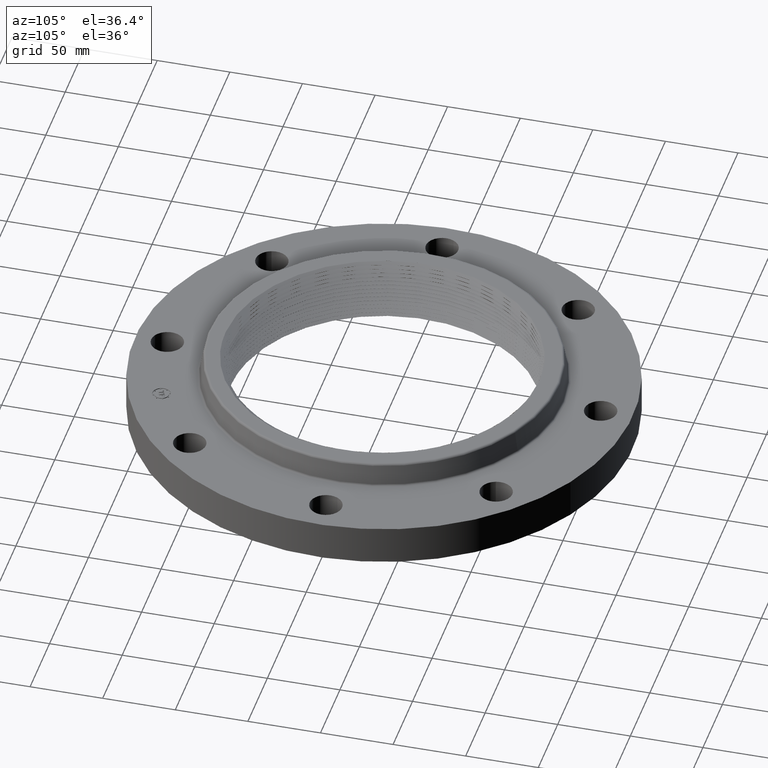
[diagram: clean part render]
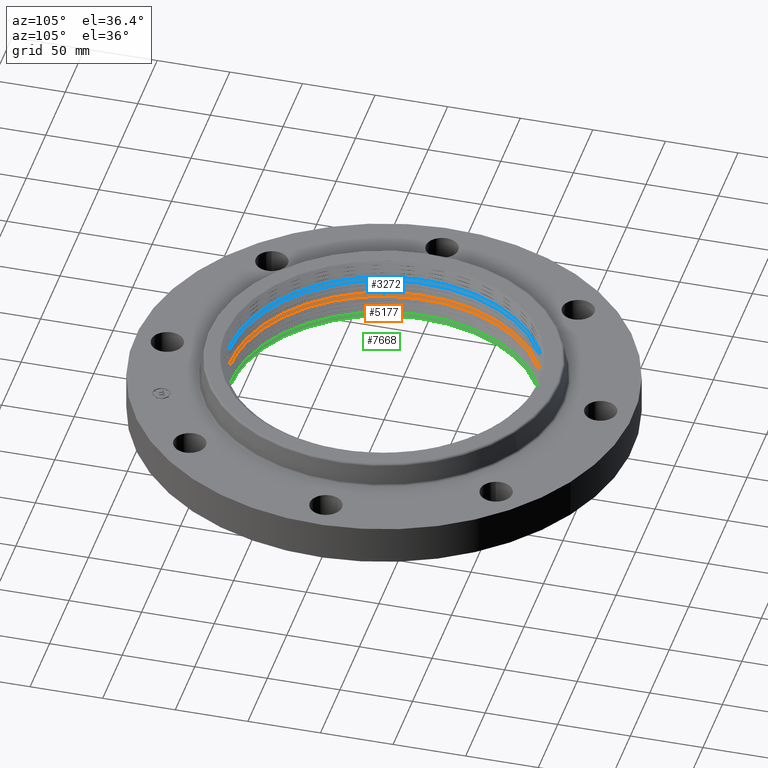
[diagram: same view with three faces highlighted in distinct colors, each labeled with its STEP entity id]
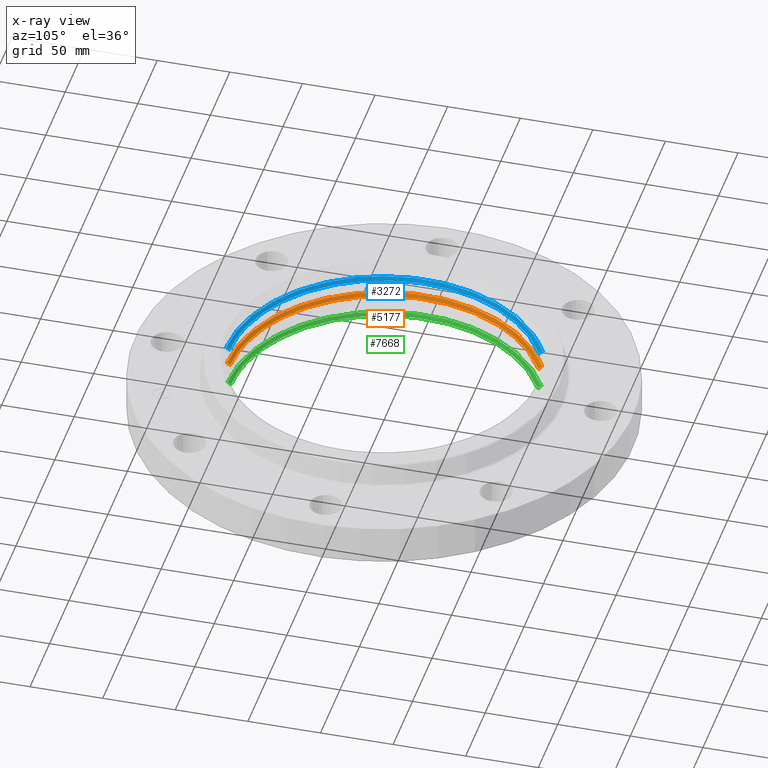
[diagram: x-ray of the same camera — body ghosted, the three highlighted faces saturated]
A machine part, auxiliary view with three faces highlighted in distinct colors.
The next image is the same camera in x-ray (body ghosted, the three faces saturated) — at least one of them is partly hidden behind the body in this view.
Their STEP definitions:

[orange] entity #5177 — the highlighted face is a freeform B-spline surface patch.
#4962=CARTESIAN_POINT('Vertex',(-2.25011470523E-009,-4.26677267602,0.685938271637)) ;
#4996=CARTESIAN_POINT('Control Point',(-2.25011953494E-009,-4.26677267602,0.685938271637)) ;
#4997=CARTESIAN_POINT('Control Point',(-1.31632005474,-4.26658087935,0.679800762728)) ;
#4998=CARTESIAN_POINT('Control Point',(-2.63256416019,-3.75877503089,0.673662916018)) ;
#4999=CARTESIAN_POINT('Control Point',(-3.67782798046,-2.74424453421,0.667562405577)) ;
#5000=CARTESIAN_POINT('Control Point',(-4.61482580087,-0.51550374432,0.657043105068)) ;
#5001=CARTESIAN_POINT('Control Point',(-4.06149634213,1.75773367391,0.646522773348)) ;
#5002=CARTESIAN_POINT('Control Point',(-3.56977022925,2.61552699081,0.64214869391)) ;
#5003=CARTESIAN_POINT('Control Point',(-2.86927013466,3.29275681196,0.637767165624)) ;
#5004=CARTESIAN_POINT('Control Point',(-2.04481244208,3.74300407337,0.63338545558)) ;
#5005=CARTESIAN_POINT('Vertex',(-2.04481244208,3.74300407337,0.63338545558)) ;
#5094=CARTESIAN_POINT('Control Point',(2.27250583202E-006,-4.16619405117,0.627363721922)) ;
#5095=CARTESIAN_POINT('Control Point',(-2.25011467741E-009,-4.26677267602,0.685938271637)) ;
#5096=CARTESIAN_POINT('Vertex',(2.27250583188E-006,-4.16619405117,0.627363721922)) ;
#5115=CARTESIAN_POINT('Control Point',(2.3024671564E-006,-4.16486930738,0.626592223294)) ;
#5116=CARTESIAN_POINT('Control Point',(-2.25011953494E-009,-4.26677267602,0.685938271637)) ;
#5117=CARTESIAN_POINT('Control Point',(-1.28488005343,-4.16467822168,0.620454714385)) ;
#5118=CARTESIAN_POINT('Control Point',(-1.31632005474,-4.26658087935,0.679800762728)) ;
#5119=CARTESIAN_POINT('Control Point',(-2.56968501748,-3.6689964374,0.614316882943)) ;
#5120=CARTESIAN_POINT('Control Point',(-2.63256416019,-3.75877503089,0.673662916018)) ;
#5121=CARTESIAN_POINT('Control Point',(-3.58997819674,-2.67869482752,0.608216358189)) ;
#5122=CARTESIAN_POINT('Control Point',(-3.67782798046,-2.74424453421,0.667562405577)) ;
#5123=CARTESIAN_POINT('Control Point',(-4.5045862223,-0.50318927836,0.597697056046)) ;
#5124=CARTESIAN_POINT('Control Point',(-4.61482580087,-0.51550374432,0.657043105068)) ;
#5125=CARTESIAN_POINT('Control Point',(-3.96446819656,1.71574039743,0.587176725494)) ;
#5126=CARTESIAN_POINT('Control Point',(-4.06149634213,1.75773367391,0.646522773348)) ;
#5127=CARTESIAN_POINT('Control Point',(-3.48448676169,2.55303916013,0.58280264946)) ;
#5128=CARTESIAN_POINT('Control Point',(-3.56977022925,2.61552699081,0.64214869391)) ;
#5129=CARTESIAN_POINT('Control Point',(-2.80072037331,3.21408684021,0.578421117286)) ;
#5130=CARTESIAN_POINT('Control Point',(-2.86927013466,3.29275681196,0.637767165624)) ;
#5131=CARTESIAN_POINT('Control Point',(-1.99595948813,3.653574294,0.574039407241)) ;
#5132=CARTESIAN_POINT('Control Point',(-2.04481244208,3.74300407337,0.63338545558)) ;
#5134=CARTESIAN_POINT('Control Point',(-1.99659457653,3.65473688113,0.574810905869)) ;
#5135=CARTESIAN_POINT('Control Point',(-2.04481244208,3.74300407337,0.63338545558)) ;
#5136=CARTESIAN_POINT('Vertex',(-1.99659457653,3.65473688113,0.574810905869)) ;
#5140=CARTESIAN_POINT('Control Point',(-1.99659457653,3.65473688113,0.574810905869)) ;
#5141=CARTESIAN_POINT('Control Point',(-2.18990172796,3.54917002597,0.575863077374)) ;
#5142=CARTESIAN_POINT('Control Point',(-2.37623085672,3.43082311631,0.576915245527)) ;
#5143=CARTESIAN_POINT('Control Point',(-2.55444499751,3.30031690426,0.577966872041)) ;
#5144=CARTESIAN_POINT('Control Point',(-2.89195719602,3.01702961872,0.580066603469)) ;
#5145=CARTESIAN_POINT('Control Point',(-3.18928882783,2.69189026264,0.582166609857)) ;
#5146=CARTESIAN_POINT('Control Point',(-3.32740160691,2.51940480722,0.583219080217)) ;
#5147=CARTESIAN_POINT('Control Point',(-3.58031757679,2.15629662223,0.58532826852)) ;
#5148=CARTESIAN_POINT('Control Point',(-3.78311425595,1.76299356687,0.587437337058)) ;
#5149=CARTESIAN_POINT('Control Point',(-3.8710484498,1.56027750536,0.588489687579)) ;
#5150=CARTESIAN_POINT('Control Point',(-4.09386459329,0.937748457871,0.591640975607)) ;
#5151=CARTESIAN_POINT('Control Point',(-4.19106965198,0.279264494396,0.594793948054)) ;
#5152=CARTESIAN_POINT('Control Point',(-4.197140403,-0.166451691536,0.596902091404)) ;
#5153=CARTESIAN_POINT('Control Point',(-4.11786567765,-0.827225520675,0.600046284481)) ;
#5154=CARTESIAN_POINT('Control Point',(-3.91218135221,-1.45533747733,0.603190628188)) ;
#5155=CARTESIAN_POINT('Control Point',(-3.82987520107,-1.66026190478,0.604241855502)) ;
#5156=CARTESIAN_POINT('Control Point',(-3.63800501961,-2.05877272222,0.606351150427)) ;
#5157=CARTESIAN_POINT('Control Point',(-3.39531972524,-2.42843023814,0.608462454372)) ;
#5158=CARTESIAN_POINT('Control Point',(-3.26213174478,-2.60446365785,0.609515689722)) ;
#5159=CARTESIAN_POINT('Control Point',(-2.97499007616,-2.93642623467,0.611609844602)) ;
#5160=CARTESIAN_POINT('Control Point',(-2.64688159772,-3.2279564431,0.613700048789)) ;
#5161=CARTESIAN_POINT('Control Point',(-2.47271630886,-3.36344583717,0.61474893619)) ;
#5162=CARTESIAN_POINT('Control Point',(-2.1063645862,-3.61103382931,0.616851679062)) ;
#5163=CARTESIAN_POINT('Control Point',(-1.7104927408,-3.80820758062,0.618956351936)) ;
#5164=CARTESIAN_POINT('Control Point',(-1.5067637468,-3.89320801283,0.620007170227)) ;
#5165=CARTESIAN_POINT('Control Point',(-1.09053474753,-4.03574537878,0.622106075902)) ;
#5166=CARTESIAN_POINT('Control Point',(-0.659065182778,-4.12248075935,0.624207966439)) ;
#5167=CARTESIAN_POINT('Control Point',(-0.440249136848,-4.15159012999,0.625261420114)) ;
#5168=CARTESIAN_POINT('Control Point',(-0.220125082398,-4.166161323,0.626312571986)) ;
#5169=CARTESIAN_POINT('Control Point',(2.27250583265E-006,-4.16619405117,0.627363721922)) ;
#5172=ORIENTED_EDGE('',*,*,#5138,.F.) ;
#5173=ORIENTED_EDGE('',*,*,#5007,.F.) ;
#5174=ORIENTED_EDGE('',*,*,#5098,.T.) ;
#5175=ORIENTED_EDGE('',*,*,#5170,.F.) ;
#5177=ADVANCED_FACE('PartBody',(#5176),#5114,.T.) ;
#4995=B_SPLINE_CURVE_WITH_KNOTS('',5,(#4996,#4997,#4998,#4999,#5000,#5001,#5002,#5003,#5004),.UNSPECIFIED.,.F.,.U.,(6,3,6),(0.,165.228048501,283.142254166),.UNSPECIFIED.) ;
#5093=B_SPLINE_CURVE_WITH_KNOTS('',1,(#5094,#5095),.UNSPECIFIED.,.F.,.U.,(2,2),(-1.45870574762,1.49764450472),.UNSPECIFIED.) ;
#5133=B_SPLINE_CURVE_WITH_KNOTS('',1,(#5134,#5135),.UNSPECIFIED.,.F.,.U.,(2,2),(-1.45870574762,1.49764450472),.UNSPECIFIED.) ;
#5139=B_SPLINE_CURVE_WITH_KNOTS('',5,(#5140,#5141,#5142,#5143,#5144,#5145,#5146,#5147,#5148,#5149,#5150,#5151,#5152,#5153,#5154,#5155,#5156,#5157,#5158,#5159,#5160,#5161,#5162,#5163,#5164,#5165,#5166,#5167,#5168,#5169),.UNSPECIFIED.,.F.,.U.,(6,3,3,3,3,3,3,3,3,6),(0.,40.0557228205,79.9692903148,119.882857809,199.980356041,239.862674105,279.744992169,319.589441578,359.433890986,399.458513024),.UNSPECIFIED.) ;
#5114=B_SPLINE_SURFACE_WITH_KNOTS('',5,1,((#5115,#5116),(#5117,#5118),(#5119,#5120),(#5121,#5122),(#5123,#5124),(#5125,#5126),(#5127,#5128),(#5129,#5130),(#5131,#5132)),.UNSPECIFIED.,.F.,.F.,.U.,(6,3,6),(2,2),(0.,165.228048501,283.142254166),(-1.49764450472,1.49764450472),.UNSPECIFIED.) ;
#5007=EDGE_CURVE('',#4963,#5006,#4995,.T.) ;
#5098=EDGE_CURVE('',#4963,#5097,#5093,.F.) ;
#5138=EDGE_CURVE('',#5006,#5137,#5133,.F.) ;
#5170=EDGE_CURVE('',#5137,#5097,#5139,.T.) ;
#5171=EDGE_LOOP('',(#5172,#5173,#5174,#5175)) ;
#5176=FACE_OUTER_BOUND('',#5171,.T.) ;
#4963=VERTEX_POINT('',#4962) ;
#5006=VERTEX_POINT('',#5005) ;
#5097=VERTEX_POINT('',#5096) ;
#5137=VERTEX_POINT('',#5136) ;

[blue] entity #3272 — the highlighted face is a freeform B-spline surface patch.
#2989=CARTESIAN_POINT('Vertex',(-1.18684554747E-009,-4.28239758336,1.18593827164)) ;
#2993=CARTESIAN_POINT('Control Point',(-1.18684393947E-009,-4.28239758336,1.18593827164)) ;
#2994=CARTESIAN_POINT('Control Point',(-1.32114046943,-4.28220578701,1.17980076248)) ;
#2995=CARTESIAN_POINT('Control Point',(-2.64220795297,-3.77254110715,1.17366287068)) ;
#2996=CARTESIAN_POINT('Control Point',(-3.69129994713,-2.75429209907,1.16756239044)) ;
#2997=CARTESIAN_POINT('Control Point',(-4.63172884671,-0.517388936901,1.15704308826)) ;
#2998=CARTESIAN_POINT('Control Point',(-4.07637305926,1.76417393465,1.14652276608)) ;
#2999=CARTESIAN_POINT('Control Point',(-3.58284593528,2.62510897971,1.14214869113)) ;
#3000=CARTESIAN_POINT('Control Point',(-2.87978070497,3.30481934789,1.13776716302)) ;
#3001=CARTESIAN_POINT('Control Point',(-2.05230342263,3.75671621906,1.13338545558)) ;
#3002=CARTESIAN_POINT('Vertex',(-2.05230342263,3.75671621906,1.13338545558)) ;
#3204=CARTESIAN_POINT('Control Point',(1.21445326528E-006,-4.18049421471,1.12659222327)) ;
#3205=CARTESIAN_POINT('Control Point',(-1.18684393947E-009,-4.28239758336,1.18593827164)) ;
#3206=CARTESIAN_POINT('Control Point',(-1.28970155596,-4.18030279336,1.12045471411)) ;
#3207=CARTESIAN_POINT('Control Point',(-1.32114046943,-4.28220578701,1.17980076248)) ;
#3208=CARTESIAN_POINT('Control Point',(-2.57932970301,-3.68276188257,1.11431683185)) ;
#3209=CARTESIAN_POINT('Control Point',(-2.64220795297,-3.77254110715,1.17366287068)) ;
#3210=CARTESIAN_POINT('Control Point',(-3.60345081606,-2.68874153702,1.10821634207)) ;
#3211=CARTESIAN_POINT('Control Point',(-3.69129994713,-2.75429209907,1.16756239044)) ;
#3212=CARTESIAN_POINT('Control Point',(-4.52148939823,-0.505073372933,1.09769703989)) ;
#3213=CARTESIAN_POINT('Control Point',(-4.63172884671,-0.517388936901,1.15704308826)) ;
#3214=CARTESIAN_POINT('Control Point',(-3.97934448557,1.72218165403,1.08717671771)) ;
#3215=CARTESIAN_POINT('Control Point',(-4.07637305926,1.76417393465,1.14652276608)) ;
#3216=CARTESIAN_POINT('Control Point',(-3.49756181634,2.56262203474,1.08280265151)) ;
#3217=CARTESIAN_POINT('Control Point',(-3.58284593528,2.62510897971,1.14214869113)) ;
#3218=CARTESIAN_POINT('Control Point',(-2.81123011403,3.22615010291,1.07842111465)) ;
#3219=CARTESIAN_POINT('Control Point',(-2.87978070497,3.30481934789,1.13776716302)) ;
#3220=CARTESIAN_POINT('Control Point',(-2.00344951218,3.66728696224,1.07403940721)) ;
#3221=CARTESIAN_POINT('Control Point',(-2.05230342263,3.75671621906,1.13338545558)) ;
#3223=CARTESIAN_POINT('Control Point',(-2.00408461302,3.66844954258,1.07481090584)) ;
#3224=CARTESIAN_POINT('Control Point',(-2.05230342263,3.75671621906,1.13338545558)) ;
#3225=CARTESIAN_POINT('Vertex',(-2.00408461302,3.66844954258,1.07481090584)) ;
#3229=CARTESIAN_POINT('Control Point',(1.19864994352E-006,-4.18181895851,1.12736372189)) ;
#3230=CARTESIAN_POINT('Control Point',(-1.18684428709E-009,-4.28239758336,1.18593827164)) ;
#3231=CARTESIAN_POINT('Vertex',(1.19864994906E-006,-4.18181895851,1.12736372189)) ;
#3235=CARTESIAN_POINT('Control Point',(-2.00408461302,3.66844954258,1.07481090584)) ;
#3236=CARTESIAN_POINT('Control Point',(-2.19811679228,3.56248666763,1.07586307623)) ;
#3237=CARTESIAN_POINT('Control Point',(-2.38514476074,3.44369582834,1.07691524249)) ;
#3238=CARTESIAN_POINT('Control Point',(-2.5640272603,3.31270012734,1.07796686584)) ;
#3239=CARTESIAN_POINT('Control Point',(-2.90280489234,3.02835067487,1.0800665911)) ;
#3240=CARTESIAN_POINT('Control Point',(-3.20125126838,2.70199249961,1.0821665934)) ;
#3241=CARTESIAN_POINT('Control Point',(-3.33988226597,2.52886014522,1.08321906422)) ;
#3242=CARTESIAN_POINT('Control Point',(-3.5937474893,2.16438945863,1.08532825597)) ;
#3243=CARTESIAN_POINT('Control Point',(-3.79730528643,1.7696105791,1.08743732615)) ;
#3244=CARTESIAN_POINT('Control Point',(-3.88556929474,1.56613413421,1.08848967534)) ;
#3245=CARTESIAN_POINT('Control Point',(-4.10922115489,0.941271046242,1.09164095405)) ;
#3246=CARTESIAN_POINT('Control Point',(-4.2067912759,0.280317896466,1.09479392413)) ;
#3247=CARTESIAN_POINT('Control Point',(-4.21288519287,-0.167070462308,1.09690207981)) ;
#3248=CARTESIAN_POINT('Control Point',(-4.13331354039,-0.830322924557,1.10004625249)) ;
#3249=CARTESIAN_POINT('Control Point',(-3.92685861181,-1.46079019533,1.10319058013)) ;
#3250=CARTESIAN_POINT('Control Point',(-3.84424394183,-1.66648352784,1.10424180855)) ;
#3251=CARTESIAN_POINT('Control Point',(-3.65165417714,-2.06648988086,1.10635111229)) ;
#3252=CARTESIAN_POINT('Control Point',(-3.40805873958,-2.43753439349,1.10846242461)) ;
#3253=CARTESIAN_POINT('Control Point',(-3.27437139561,-2.61422801818,1.10951566061)) ;
#3254=CARTESIAN_POINT('Control Point',(-2.98615359674,-2.9474353833,1.11160980498)) ;
#3255=CARTESIAN_POINT('Control Point',(-2.65681546511,-3.24005890772,1.11369998345)) ;
#3256=CARTESIAN_POINT('Control Point',(-2.48199692827,-3.37605689455,1.11474885817)) ;
#3257=CARTESIAN_POINT('Control Point',(-2.11427064421,-3.62457447374,1.11685158058)) ;
#3258=CARTESIAN_POINT('Control Point',(-1.71691308102,-3.82248864822,1.11895625144)) ;
#3259=CARTESIAN_POINT('Control Point',(-1.51241950691,-3.90780820853,1.12000707552)) ;
#3260=CARTESIAN_POINT('Control Point',(-1.09462886015,-4.05088062255,1.12210600732)) ;
#3261=CARTESIAN_POINT('Control Point',(-0.661540015683,-4.13794165289,1.12420793746)) ;
#3262=CARTESIAN_POINT('Control Point',(-0.44190268133,-4.16716031288,1.12526141029)) ;
#3263=CARTESIAN_POINT('Control Point',(-0.220952370216,-4.1817861735,1.12631256888)) ;
#3264=CARTESIAN_POINT('Control Point',(1.19864994333E-006,-4.18181895851,1.12736372189)) ;
#3267=ORIENTED_EDGE('',*,*,#3227,.F.) ;
#3268=ORIENTED_EDGE('',*,*,#3004,.F.) ;
#3269=ORIENTED_EDGE('',*,*,#3233,.T.) ;
#3270=ORIENTED_EDGE('',*,*,#3265,.F.) ;
#3272=ADVANCED_FACE('PartBody',(#3271),#3203,.T.) ;
#2992=B_SPLINE_CURVE_WITH_KNOTS('',5,(#2993,#2994,#2995,#2996,#2997,#2998,#2999,#3000,#3001),.UNSPECIFIED.,.F.,.U.,(6,3,6),(0.,165.840191562,284.191344733),.UNSPECIFIED.) ;
#3222=B_SPLINE_CURVE_WITH_KNOTS('',1,(#3223,#3224),.UNSPECIFIED.,.F.,.U.,(2,2),(-1.4587057476,1.49764450472),.UNSPECIFIED.) ;
#3228=B_SPLINE_CURVE_WITH_KNOTS('',1,(#3229,#3230),.UNSPECIFIED.,.F.,.U.,(2,2),(-1.4587057476,1.49764450472),.UNSPECIFIED.) ;
#3234=B_SPLINE_CURVE_WITH_KNOTS('',5,(#3235,#3236,#3237,#3238,#3239,#3240,#3241,#3242,#3243,#3244,#3245,#3246,#3247,#3248,#3249,#3250,#3251,#3252,#3253,#3254,#3255,#3256,#3257,#3258,#3259,#3260,#3261,#3262,#3263,#3264),.UNSPECIFIED.,.F.,.U.,(6,3,3,3,3,3,3,3,3,6),(0.,40.1299288243,80.117374203,120.104819582,200.350774308,240.307025347,280.263276387,320.181706667,360.100136947,400.199067471),.UNSPECIFIED.) ;
#3203=B_SPLINE_SURFACE_WITH_KNOTS('',5,1,((#3204,#3205),(#3206,#3207),(#3208,#3209),(#3210,#3211),(#3212,#3213),(#3214,#3215),(#3216,#3217),(#3218,#3219),(#3220,#3221)),.UNSPECIFIED.,.F.,.F.,.U.,(6,3,6),(2,2),(0.,165.840191562,284.191344733),(-1.49764450472,1.49764450472),.UNSPECIFIED.) ;
#3004=EDGE_CURVE('',#2990,#3003,#2992,.T.) ;
#3227=EDGE_CURVE('',#3003,#3226,#3222,.F.) ;
#3233=EDGE_CURVE('',#2990,#3232,#3228,.F.) ;
#3265=EDGE_CURVE('',#3226,#3232,#3234,.T.) ;
#3266=EDGE_LOOP('',(#3267,#3268,#3269,#3270)) ;
#3271=FACE_OUTER_BOUND('',#3266,.T.) ;
#2990=VERTEX_POINT('',#2989) ;
#3003=VERTEX_POINT('',#3002) ;
#3226=VERTEX_POINT('',#3225) ;
#3232=VERTEX_POINT('',#3231) ;

[green] entity #7668 — the highlighted face is a freeform B-spline surface patch.
#7339=CARTESIAN_POINT('Vertex',(-3.59038754982E-009,-4.24724154185,0.0609382716342)) ;
#7343=CARTESIAN_POINT('Control Point',(-3.59037610476E-009,-4.24724154185,0.0609382716342)) ;
#7344=CARTESIAN_POINT('Control Point',(-1.31029535658,-4.24704974463,0.054800759223)) ;
#7345=CARTESIAN_POINT('Control Point',(-2.62050825637,-3.74156689293,0.0486629643558)) ;
#7346=CARTESIAN_POINT('Control Point',(-3.66098734342,-2.73168661211,0.0425624390621)) ;
#7347=CARTESIAN_POINT('Control Point',(-4.59369727375,-0.513147949986,0.0320431243852)) ;
#7348=CARTESIAN_POINT('Control Point',(-4.04290035158,1.74968378552,0.0215227840999)) ;
#7349=CARTESIAN_POINT('Control Point',(-3.55342527763,2.60354958284,0.0171486877401)) ;
#7350=CARTESIAN_POINT('Control Point',(-2.85613209309,3.27767854846,0.0127671698276)) ;
#7351=CARTESIAN_POINT('Control Point',(-2.03544871639,3.72586389125,0.0083854555772)) ;
#7352=CARTESIAN_POINT('Vertex',(-2.03544871639,3.72586389125,0.0083854555772)) ;
#7505=CARTESIAN_POINT('Vertex',(-1.98723204081,3.63759604893,-0.0501890940664)) ;
#7509=CARTESIAN_POINT('Control Point',(-1.98723204081,3.63759604893,-0.0501890940664)) ;
#7510=CARTESIAN_POINT('Control Point',(-2.17963299412,3.53252417049,-0.0491369206826)) ;
#7511=CARTESIAN_POINT('Control Point',(-2.36508863594,3.41473212305,-0.0480847491367)) ;
#7512=CARTESIAN_POINT('Control Point',(-2.54246737585,3.28483772174,-0.0470331165706)) ;
#7513=CARTESIAN_POINT('Control Point',(-2.87839916839,3.00287693927,-0.0449333647808)) ;
#7514=CARTESIAN_POINT('Control Point',(-3.17433841061,2.67925956466,-0.0428333418284)) ;
#7515=CARTESIAN_POINT('Control Point',(-3.31180289403,2.50758293194,-0.0417808747482)) ;
#7516=CARTESIAN_POINT('Control Point',(-3.56353056319,2.1461802291,-0.0396717054377)) ;
#7517=CARTESIAN_POINT('Control Point',(-3.7653745036,1.75472453331,-0.037562654884)) ;
#7518=CARTESIAN_POINT('Control Point',(-3.85289643814,1.55295946783,-0.0365103065606)) ;
#7519=CARTESIAN_POINT('Control Point',(-4.07466882867,0.933346211601,-0.0333590016899)) ;
#7520=CARTESIAN_POINT('Control Point',(-4.17141771893,0.277946731872,-0.0302060177508)) ;
#7521=CARTESIAN_POINT('Control Point',(-4.17745939865,-0.165679453849,-0.0280978850608)) ;
#7522=CARTESIAN_POINT('Control Point',(-4.09855555816,-0.823355379336,-0.024953668623)) ;
#7523=CARTESIAN_POINT('Control Point',(-3.89383411284,-1.4485234116,-0.0218093122735)) ;
#7524=CARTESIAN_POINT('Control Point',(-3.81191322739,-1.65248635946,-0.0207580956225)) ;
#7525=CARTESIAN_POINT('Control Point',(-3.62094235983,-2.04912744854,-0.018648821031)) ;
#7526=CARTESIAN_POINT('Control Point',(-3.3793949952,-2.41705113967,-0.0165375232992)) ;
#7527=CARTESIAN_POINT('Control Point',(-3.24683142779,-2.59225916842,-0.015484283508)) ;
#7528=CARTESIAN_POINT('Control Point',(-2.9610346745,-2.92266583163,-0.0133901106391)) ;
#7529=CARTESIAN_POINT('Control Point',(-2.6344630091,-3.21282939723,-0.0112998690181)) ;
#7530=CARTESIAN_POINT('Control Point',(-2.46111453338,-3.34768280009,-0.0102509611705)) ;
#7531=CARTESIAN_POINT('Control Point',(-2.09648112894,-3.59410840105,-0.00814818772868)) ;
#7532=CARTESIAN_POINT('Control Point',(-1.70246670167,-3.79035632916,-0.00604351889274)) ;
#7533=CARTESIAN_POINT('Control Point',(-1.49969382413,-3.87495785919,-0.00499271565103)) ;
#7534=CARTESIAN_POINT('Control Point',(-1.0854169316,-4.01682636865,-0.00289384420417)) ;
#7535=CARTESIAN_POINT('Control Point',(-0.655971476497,-4.10315466091,-0.000792001550369)) ;
#7536=CARTESIAN_POINT('Control Point',(-0.438182122889,-4.13212740462,0.000261429722289)) ;
#7537=CARTESIAN_POINT('Control Point',(-0.21909094515,-4.14663026047,0.00131257600648)) ;
#7538=CARTESIAN_POINT('Control Point',(3.62606860639E-006,-4.146662917,0.00236372198378)) ;
#7539=CARTESIAN_POINT('Vertex',(3.62606861115E-006,-4.146662917,0.00236372198378)) ;
#7636=CARTESIAN_POINT('Control Point',(3.67387566132E-006,-4.14533817321,0.00159222335712)) ;
#7637=CARTESIAN_POINT('Control Point',(-3.59037610476E-009,-4.24724154185,0.0609382716342)) ;
#7638=CARTESIAN_POINT('Control Point',(-1.2788539644,-4.14514751055,-0.00454528904587)) ;
#7639=CARTESIAN_POINT('Control Point',(-1.31029535658,-4.24704974463,0.054800759223)) ;
#7640=CARTESIAN_POINT('Control Point',(-2.55762801618,-3.65178918248,-0.0106830571861)) ;
#7641=CARTESIAN_POINT('Control Point',(-2.62050825637,-3.74156689293,0.0486629643558)) ;
#7642=CARTESIAN_POINT('Control Point',(-3.57313675814,-2.66613794646,-0.0167836096897)) ;
#7643=CARTESIAN_POINT('Control Point',(-3.66098734342,-2.73168661211,0.0425624390621)) ;
#7644=CARTESIAN_POINT('Control Point',(-4.48345752104,-0.500834851551,-0.0273029235476)) ;
#7645=CARTESIAN_POINT('Control Point',(-4.59369727375,-0.513147949986,0.0320431243852)) ;
#7646=CARTESIAN_POINT('Control Point',(-3.94587275033,1.70768924345,-0.037823264415)) ;
#7647=CARTESIAN_POINT('Control Point',(-4.04290035158,1.74968378552,0.0215227840999)) ;
#7648=CARTESIAN_POINT('Control Point',(-3.46814262668,2.54106062276,-0.0421973391747)) ;
#7649=CARTESIAN_POINT('Control Point',(-3.55342527763,2.60354958284,0.0171486877401)) ;
#7650=CARTESIAN_POINT('Control Point',(-2.78758337332,3.19900766295,-0.0465788784566)) ;
#7651=CARTESIAN_POINT('Control Point',(-2.85613209309,3.27767854846,0.0127671698276)) ;
#7652=CARTESIAN_POINT('Control Point',(-1.98659696808,3.63643345324,-0.0509605926929)) ;
#7653=CARTESIAN_POINT('Control Point',(-2.03544871639,3.72586389125,0.0083854555772)) ;
#7655=CARTESIAN_POINT('Control Point',(-1.98723204081,3.63759604893,-0.0501890940664)) ;
#7656=CARTESIAN_POINT('Control Point',(-2.03544871639,3.72586389125,0.0083854555772)) ;
#7659=CARTESIAN_POINT('Control Point',(3.62606860269E-006,-4.146662917,0.00236372198378)) ;
#7660=CARTESIAN_POINT('Control Point',(-3.59037631201E-009,-4.24724154185,0.0609382716342)) ;
#7663=ORIENTED_EDGE('',*,*,#7657,.F.) ;
#7664=ORIENTED_EDGE('',*,*,#7354,.F.) ;
#7665=ORIENTED_EDGE('',*,*,#7661,.T.) ;
#7666=ORIENTED_EDGE('',*,*,#7541,.F.) ;
#7668=ADVANCED_FACE('PartBody',(#7667),#7635,.T.) ;
#7342=B_SPLINE_CURVE_WITH_KNOTS('',5,(#7343,#7344,#7345,#7346,#7347,#7348,#7349,#7350,#7351),.UNSPECIFIED.,.F.,.U.,(6,3,6),(0.,164.46297314,281.83101929),.UNSPECIFIED.) ;
#7508=B_SPLINE_CURVE_WITH_KNOTS('',5,(#7509,#7510,#7511,#7512,#7513,#7514,#7515,#7516,#7517,#7518,#7519,#7520,#7521,#7522,#7523,#7524,#7525,#7526,#7527,#7528,#7529,#7530,#7531,#7532,#7533,#7534,#7535,#7536,#7537,#7538),.UNSPECIFIED.,.F.,.U.,(6,3,3,3,3,3,3,3,3,6),(0.,39.9631771973,79.7849204852,119.606663773,199.519012152,239.309148805,279.099285459,318.85148152,358.603677582,398.535603712),.UNSPECIFIED.) ;
#7654=B_SPLINE_CURVE_WITH_KNOTS('',1,(#7655,#7656),.UNSPECIFIED.,.F.,.U.,(2,2),(-1.45870574765,1.49764450472),.UNSPECIFIED.) ;
#7658=B_SPLINE_CURVE_WITH_KNOTS('',1,(#7659,#7660),.UNSPECIFIED.,.F.,.U.,(2,2),(-1.45870574764,1.49764450472),.UNSPECIFIED.) ;
#7635=B_SPLINE_SURFACE_WITH_KNOTS('',5,1,((#7636,#7637),(#7638,#7639),(#7640,#7641),(#7642,#7643),(#7644,#7645),(#7646,#7647),(#7648,#7649),(#7650,#7651),(#7652,#7653)),.UNSPECIFIED.,.F.,.F.,.U.,(6,3,6),(2,2),(0.,164.46297314,281.83101929),(-1.49764450472,1.49764450472),.UNSPECIFIED.) ;
#7354=EDGE_CURVE('',#7340,#7353,#7342,.T.) ;
#7541=EDGE_CURVE('',#7506,#7540,#7508,.T.) ;
#7657=EDGE_CURVE('',#7353,#7506,#7654,.F.) ;
#7661=EDGE_CURVE('',#7340,#7540,#7658,.F.) ;
#7662=EDGE_LOOP('',(#7663,#7664,#7665,#7666)) ;
#7667=FACE_OUTER_BOUND('',#7662,.T.) ;
#7340=VERTEX_POINT('',#7339) ;
#7353=VERTEX_POINT('',#7352) ;
#7506=VERTEX_POINT('',#7505) ;
#7540=VERTEX_POINT('',#7539) ;